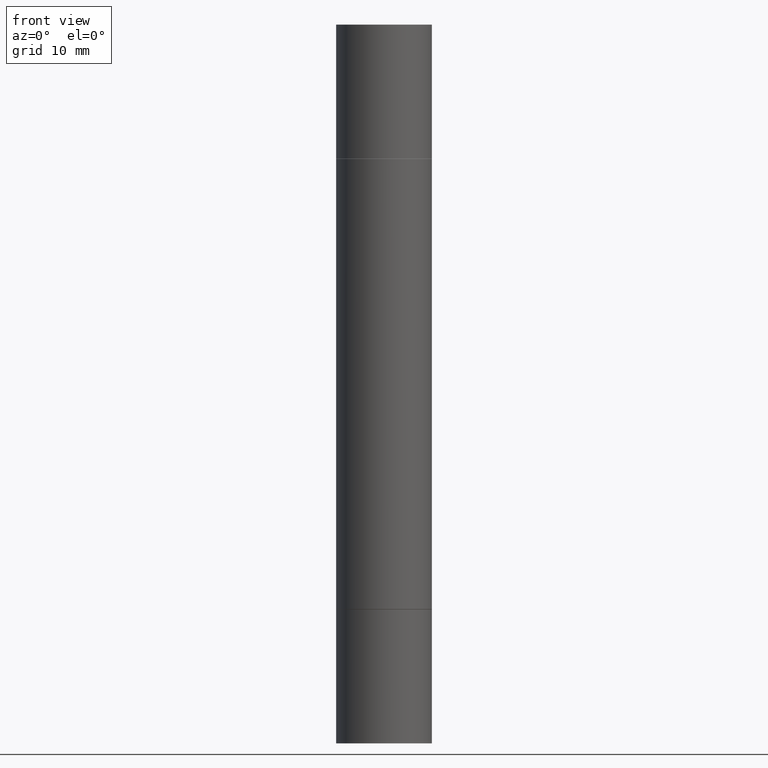
[diagram: clean part render]
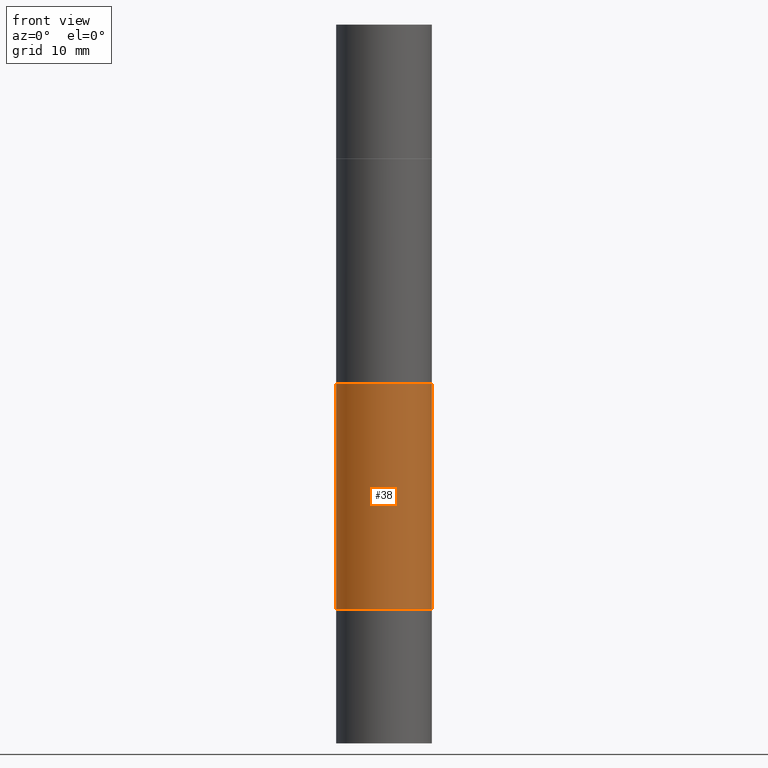
[diagram: same view with one face highlighted and labeled with its STEP entity id]
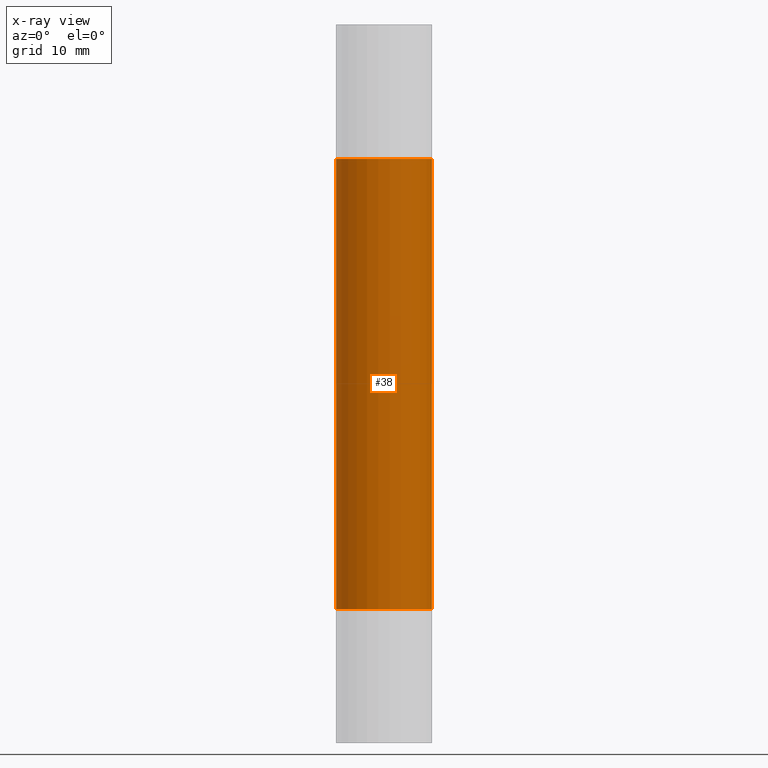
[diagram: x-ray of the same camera — body ghosted, the highlighted face saturated]
A machine part, front view. The second image highlights one B-rep face of the part: STEP entity #38.
The next image is the same camera in x-ray: the body ghosted, the highlighted face saturated — about 0% of this face is hidden behind the body in this view.
In plain terms, the highlighted cylindrical surface (partial cylindrical patch) has radius 5 mm, axis along (-0, -0, -1).
Its self-contained STEP definition (entity closure, byte-faithful):
#2 = CARTESIAN_POINT ( 'NONE',  ( -0.1968500000000000250, -3.804334017806689102E-15, -2.400599999999999401 ) ) ;
#13 = VERTEX_POINT ( 'NONE', #647 ) ;
#35 = CIRCLE ( 'NONE', #402, 0.1968500000000000250 ) ;
#38 = ADVANCED_FACE ( 'NONE', ( #476 ), #528, .T. ) ;
#42 = CARTESIAN_POINT ( 'NONE',  ( -0.1968500000000000250, -5.762046994505618475E-16, -0.5521999999999996911 ) ) ;
#49 = CARTESIAN_POINT ( 'NONE',  ( 5.870592416128037625E-29, -8.381650102026854256E-15, -2.400599999999999401 ) ) ;
#59 = DIRECTION ( 'NONE',  ( 1.000000000000000000, -6.982962677686264344E-15, 0.000000000000000000 ) ) ;
#112 = ORIENTED_EDGE ( 'NONE', *, *, #531, .F. ) ;
#113 = VERTEX_POINT ( 'NONE', #448 ) ;
#117 = VERTEX_POINT ( 'NONE', #42 ) ;
#129 = DIRECTION ( 'NONE',  ( 1.000000000000000000, -6.982962677686267499E-15, 0.000000000000000000 ) ) ;
#134 = DIRECTION ( 'NONE',  ( -2.445468806185136877E-29, -3.492890411551753071E-15, -1.000000000000000000 ) ) ;
#146 = DIRECTION ( 'NONE',  ( -2.445468806185136877E-29, -3.492890411551753071E-15, -1.000000000000000000 ) ) ;
#172 = CARTESIAN_POINT ( 'NONE',  ( 0.1968499999999998307, -1.168632265538556411E-14, -2.952799999999998981 ) ) ;
#178 = CARTESIAN_POINT ( 'NONE',  ( 5.870592416128037625E-29, -1.926693730311889446E-15, -0.5521999999999996911 ) ) ;
#197 = DIRECTION ( 'NONE',  ( 1.000000000000000000, -6.982962677686262766E-15, 0.000000000000000000 ) ) ;
#217 = CARTESIAN_POINT ( 'NONE',  ( 0.000000000000000000, -1.031172645228302408E-14, -2.952799999999998981 ) ) ;
#220 = ORIENTED_EDGE ( 'NONE', *, *, #241, .T. ) ;
#241 = EDGE_CURVE ( 'NONE', #117, #281, #405, .T. ) ;
#261 = EDGE_LOOP ( 'NONE', ( #645, #220, #640, #112 ) ) ;
#281 = VERTEX_POINT ( 'NONE', #2 ) ;
#285 = CIRCLE ( 'NONE', #430, 0.1968500000000000250 ) ;
#292 = VECTOR ( 'NONE', #146, 39.37007874015748143 ) ;
#303 = EDGE_CURVE ( 'NONE', #281, #13, #35, .T. ) ;
#319 = DIRECTION ( 'NONE',  ( -2.445468806185136597E-29, -3.492890411551752677E-15, -1.000000000000000000 ) ) ;
#387 = DIRECTION ( 'NONE',  ( 2.445468806185136597E-29, 3.492890411551752677E-15, 1.000000000000000000 ) ) ;
#402 = AXIS2_PLACEMENT_3D ( 'NONE', #49, #566, #197 ) ;
#405 = LINE ( 'NONE', #519, #292 ) ;
#419 = AXIS2_PLACEMENT_3D ( 'NONE', #217, #319, #59 ) ;
#430 = AXIS2_PLACEMENT_3D ( 'NONE', #178, #387, #129 ) ;
#434 = LINE ( 'NONE', #172, #510 ) ;
#448 = CARTESIAN_POINT ( 'NONE',  ( 0.1968500000000000250, -3.301289933414429871E-15, -0.5521999999999996911 ) ) ;
#476 = FACE_OUTER_BOUND ( 'NONE', #261, .T. ) ;
#510 = VECTOR ( 'NONE', #134, 39.37007874015748143 ) ;
#519 = CARTESIAN_POINT ( 'NONE',  ( -0.1968499999999998307, -8.961237421421701017E-15, -2.952799999999998981 ) ) ;
#528 = CYLINDRICAL_SURFACE ( 'NONE', #419, 0.1968499999999998307 ) ;
#531 = EDGE_CURVE ( 'NONE', #113, #13, #434, .T. ) ;
#566 = DIRECTION ( 'NONE',  ( -2.445468806185136597E-29, 3.491481338843145583E-15, 1.000000000000000000 ) ) ;
#624 = EDGE_CURVE ( 'NONE', #117, #113, #285, .T. ) ;
#640 = ORIENTED_EDGE ( 'NONE', *, *, #303, .T. ) ;
#645 = ORIENTED_EDGE ( 'NONE', *, *, #624, .F. ) ;
#647 = CARTESIAN_POINT ( 'NONE',  ( 0.1968500000000000250, -9.756246305129394287E-15, -2.400599999999999401 ) ) ;